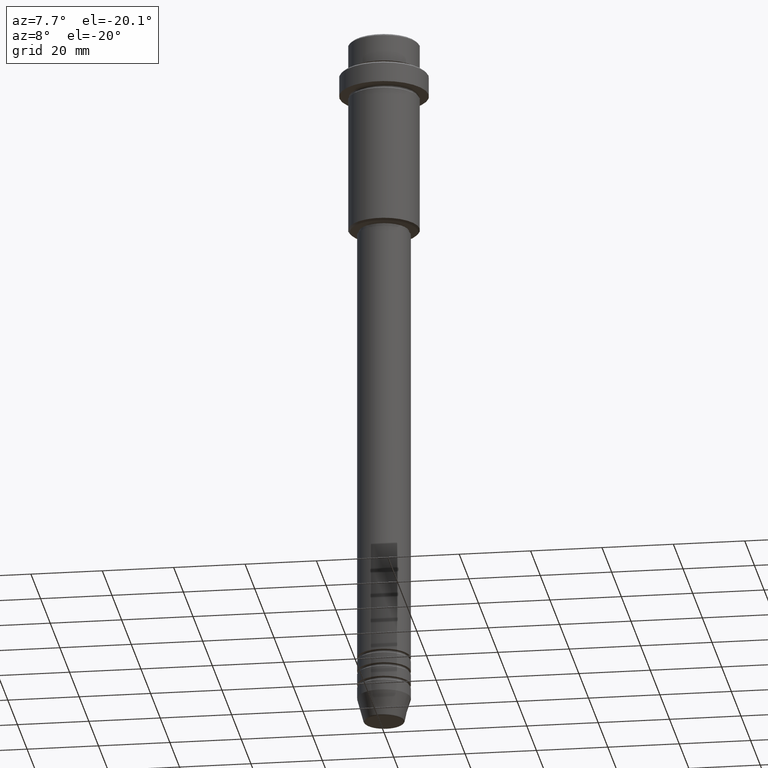
[diagram: clean part render]
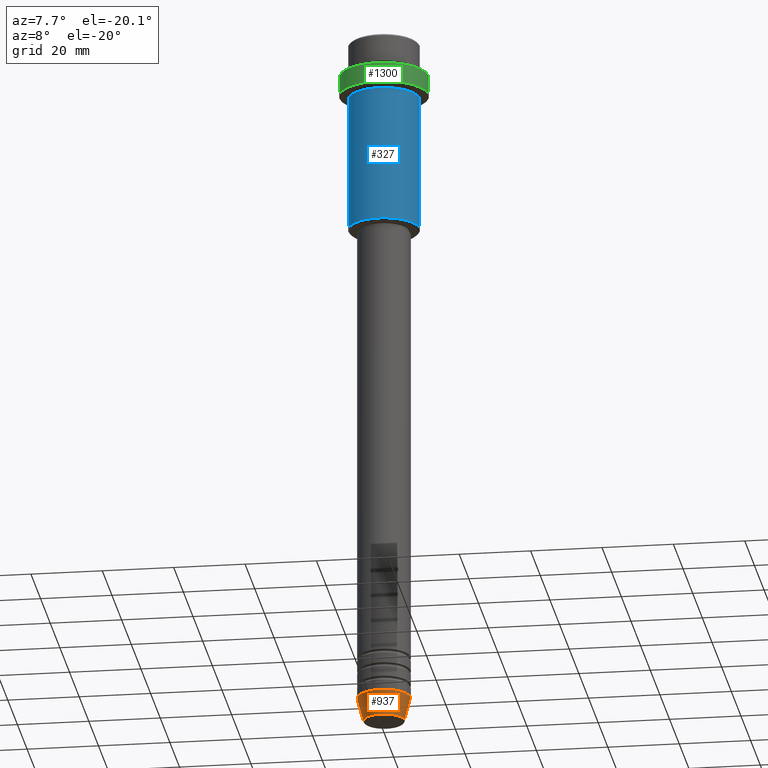
[diagram: same view with three faces highlighted in distinct colors, each labeled with its STEP entity id]
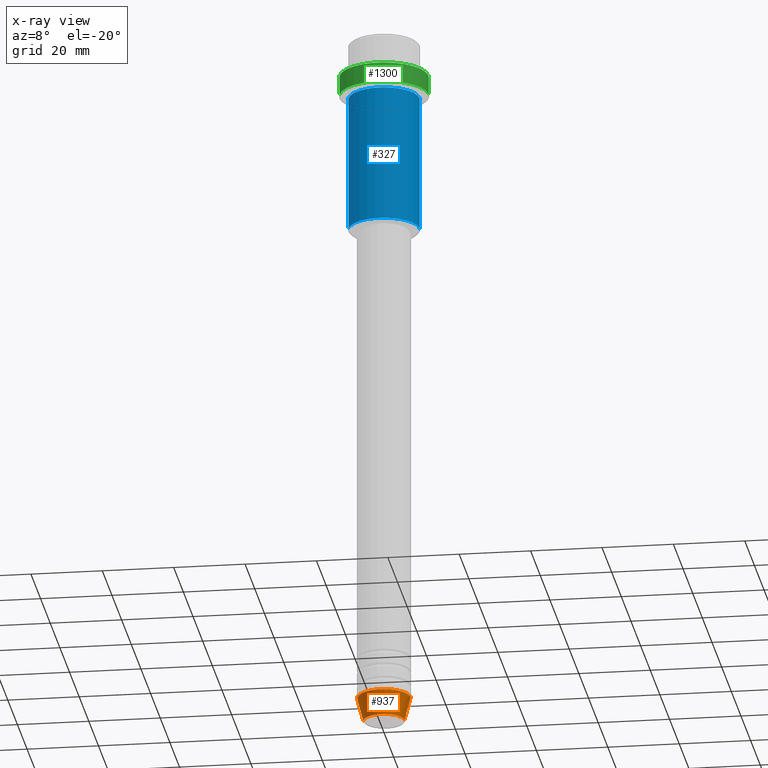
[diagram: x-ray of the same camera — body ghosted, the three highlighted faces saturated]
A machine part, auxiliary view with three faces highlighted in distinct colors.
The next image is the same camera in x-ray (body ghosted, the three faces saturated) — at least one of them is partly hidden behind the body in this view.
Their STEP definitions:

[orange] entity #937 — the highlighted conical surface has half-angle 15 deg.
#1 = EDGE_CURVE ( 'NONE', #1210, #336, #1151, .T. ) ;
#13 = VERTEX_POINT ( 'NONE', #314 ) ;
#120 = DIRECTION ( 'NONE',  ( -0.000000000000000000, -0.000000000000000000, 1.000000000000000000 ) ) ;
#152 = DIRECTION ( 'NONE',  ( -0.000000000000000000, -0.000000000000000000, 1.000000000000000000 ) ) ;
#175 = AXIS2_PLACEMENT_3D ( 'NONE', #1042, #1390, #616 ) ;
#188 = ORIENTED_EDGE ( 'NONE', *, *, #978, .F. ) ;
#202 = EDGE_CURVE ( 'NONE', #13, #1192, #611, .T. ) ;
#314 = CARTESIAN_POINT ( 'NONE',  ( -7.500000000000000000, 9.184850993605147944E-16, -193.0000000000000000 ) ) ;
#336 = VERTEX_POINT ( 'NONE', #1099 ) ;
#441 = DIRECTION ( 'NONE',  ( 1.000000000000000000, 0.000000000000000000, 0.000000000000000000 ) ) ;
#461 = CARTESIAN_POINT ( 'NONE',  ( 0.000000000000000000, 0.000000000000000000, -193.0000000000000000 ) ) ;
#586 = LINE ( 'NONE', #1014, #1184 ) ;
#611 = CIRCLE ( 'NONE', #175, 7.500000000000000000 ) ;
#616 = DIRECTION ( 'NONE',  ( 1.000000000000000000, 0.000000000000000000, 0.000000000000000000 ) ) ;
#629 = EDGE_LOOP ( 'NONE', ( #188, #924, #792, #959 ) ) ;
#649 = CARTESIAN_POINT ( 'NONE',  ( 0.000000000000000000, 0.000000000000000000, -199.6294095225512706 ) ) ;
#745 = CARTESIAN_POINT ( 'NONE',  ( 7.500000000000000000, 0.000000000000000000, -193.0000000000000000 ) ) ;
#792 = ORIENTED_EDGE ( 'NONE', *, *, #830, .T. ) ;
#830 = EDGE_CURVE ( 'NONE', #336, #1192, #1284, .T. ) ;
#841 = CONICAL_SURFACE ( 'NONE', #1182, 7.500000000000000000, 0.2617993877991500740 ) ;
#895 = DIRECTION ( 'NONE',  ( -0.2588190451025213501, 3.169619151431772337E-17, 0.9659258262890680902 ) ) ;
#904 = DIRECTION ( 'NONE',  ( 1.000000000000000000, 0.000000000000000000, 0.000000000000000000 ) ) ;
#924 = ORIENTED_EDGE ( 'NONE', *, *, #1, .T. ) ;
#937 = ADVANCED_FACE ( 'NONE', ( #1116 ), #841, .T. ) ;
#959 = ORIENTED_EDGE ( 'NONE', *, *, #202, .F. ) ;
#978 = EDGE_CURVE ( 'NONE', #1210, #13, #586, .T. ) ;
#1014 = CARTESIAN_POINT ( 'NONE',  ( -7.500000000000000000, 9.184850993605147944E-16, -193.0000000000000000 ) ) ;
#1042 = CARTESIAN_POINT ( 'NONE',  ( 0.000000000000000000, 0.000000000000000000, -193.0000000000000000 ) ) ;
#1057 = CARTESIAN_POINT ( 'NONE',  ( 7.500000000000000000, 0.000000000000000000, -193.0000000000000000 ) ) ;
#1099 = CARTESIAN_POINT ( 'NONE',  ( 5.723655072137191269, 0.000000000000000000, -199.6294095225512706 ) ) ;
#1116 = FACE_OUTER_BOUND ( 'NONE', #629, .T. ) ;
#1151 = CIRCLE ( 'NONE', #1291, 5.723655072137191269 ) ;
#1182 = AXIS2_PLACEMENT_3D ( 'NONE', #461, #152, #904 ) ;
#1184 = VECTOR ( 'NONE', #895, 1000.000000000000000 ) ;
#1192 = VERTEX_POINT ( 'NONE', #1057 ) ;
#1202 = DIRECTION ( 'NONE',  ( 0.2588190451025213501, 0.000000000000000000, 0.9659258262890680902 ) ) ;
#1210 = VERTEX_POINT ( 'NONE', #1282 ) ;
#1282 = CARTESIAN_POINT ( 'NONE',  ( -5.723655072137191269, 8.097153428560735915E-16, -199.6294095225512706 ) ) ;
#1284 = LINE ( 'NONE', #745, #1387 ) ;
#1291 = AXIS2_PLACEMENT_3D ( 'NONE', #649, #120, #441 ) ;
#1387 = VECTOR ( 'NONE', #1202, 1000.000000000000000 ) ;
#1390 = DIRECTION ( 'NONE',  ( -0.000000000000000000, -0.000000000000000000, 1.000000000000000000 ) ) ;

[blue] entity #327 — the highlighted cylindrical surface (edge-blend (fillet) strip) has radius 10 mm, axis along (-0, -0, 1).
#15 = CARTESIAN_POINT ( 'NONE',  ( -9.999999999999998224, 1.224646799147353059E-15, -54.50000000000002132 ) ) ;
#23 = DIRECTION ( 'NONE',  ( 1.000000000000000000, 0.000000000000000000, 0.000000000000000000 ) ) ;
#33 = DIRECTION ( 'NONE',  ( -0.000000000000000000, -0.000000000000000000, 1.000000000000000000 ) ) ;
#38 = CARTESIAN_POINT ( 'NONE',  ( 9.999999999999998224, 0.000000000000000000, -54.50000000000002132 ) ) ;
#50 = LINE ( 'NONE', #479, #1036 ) ;
#65 = EDGE_CURVE ( 'NONE', #68, #607, #434, .T. ) ;
#68 = VERTEX_POINT ( 'NONE', #1106 ) ;
#151 = ORIENTED_EDGE ( 'NONE', *, *, #484, .T. ) ;
#221 = CARTESIAN_POINT ( 'NONE',  ( 0.000000000000000000, 0.000000000000000000, -54.50000000000002132 ) ) ;
#255 = CIRCLE ( 'NONE', #501, 9.999999999999998224 ) ;
#327 = ADVANCED_FACE ( 'NONE', ( #524 ), #1253, .T. ) ;
#383 = VERTEX_POINT ( 'NONE', #15 ) ;
#434 = CIRCLE ( 'NONE', #976, 9.999999999999998224 ) ;
#454 = CARTESIAN_POINT ( 'NONE',  ( 0.000000000000000000, 0.000000000000000000, -16.00000000000000000 ) ) ;
#479 = CARTESIAN_POINT ( 'NONE',  ( 9.999999999999998224, 0.000000000000000000, 0.000000000000000000 ) ) ;
#484 = EDGE_CURVE ( 'NONE', #383, #628, #255, .T. ) ;
#491 = DIRECTION ( 'NONE',  ( -0.000000000000000000, -0.000000000000000000, 1.000000000000000000 ) ) ;
#501 = AXIS2_PLACEMENT_3D ( 'NONE', #221, #1417, #660 ) ;
#503 = DIRECTION ( 'NONE',  ( 1.000000000000000000, 0.000000000000000000, 0.000000000000000000 ) ) ;
#524 = FACE_OUTER_BOUND ( 'NONE', #774, .T. ) ;
#544 = EDGE_CURVE ( 'NONE', #628, #607, #50, .T. ) ;
#607 = VERTEX_POINT ( 'NONE', #1140 ) ;
#628 = VERTEX_POINT ( 'NONE', #38 ) ;
#643 = VECTOR ( 'NONE', #33, 1000.000000000000000 ) ;
#657 = ORIENTED_EDGE ( 'NONE', *, *, #544, .T. ) ;
#660 = DIRECTION ( 'NONE',  ( -1.000000000000000000, 0.000000000000000000, 0.000000000000000000 ) ) ;
#701 = CARTESIAN_POINT ( 'NONE',  ( -9.999999999999998224, 1.224646799147353059E-15, 0.000000000000000000 ) ) ;
#716 = CARTESIAN_POINT ( 'NONE',  ( 0.000000000000000000, 0.000000000000000000, 0.000000000000000000 ) ) ;
#774 = EDGE_LOOP ( 'NONE', ( #1410, #151, #657, #953 ) ) ;
#902 = EDGE_CURVE ( 'NONE', #383, #68, #921, .T. ) ;
#921 = LINE ( 'NONE', #701, #643 ) ;
#953 = ORIENTED_EDGE ( 'NONE', *, *, #65, .F. ) ;
#976 = AXIS2_PLACEMENT_3D ( 'NONE', #454, #1224, #23 ) ;
#1036 = VECTOR ( 'NONE', #491, 1000.000000000000000 ) ;
#1106 = CARTESIAN_POINT ( 'NONE',  ( -9.999999999999998224, 1.224646799147353059E-15, -16.00000000000000000 ) ) ;
#1140 = CARTESIAN_POINT ( 'NONE',  ( 9.999999999999998224, 0.000000000000000000, -16.00000000000000000 ) ) ;
#1145 = DIRECTION ( 'NONE',  ( -0.000000000000000000, -0.000000000000000000, 1.000000000000000000 ) ) ;
#1153 = AXIS2_PLACEMENT_3D ( 'NONE', #716, #1145, #503 ) ;
#1224 = DIRECTION ( 'NONE',  ( -0.000000000000000000, -0.000000000000000000, 1.000000000000000000 ) ) ;
#1253 = CYLINDRICAL_SURFACE ( 'NONE', #1153, 9.999999999999998224 ) ;
#1410 = ORIENTED_EDGE ( 'NONE', *, *, #902, .F. ) ;
#1417 = DIRECTION ( 'NONE',  ( -0.000000000000000000, -0.000000000000000000, 1.000000000000000000 ) ) ;

[green] entity #1300 — the highlighted cylindrical surface (partial cylindrical patch) has radius 12.5 mm, axis along (-0, -0, 1).
#19 = AXIS2_PLACEMENT_3D ( 'NONE', #1077, #507, #724 ) ;
#25 = CARTESIAN_POINT ( 'NONE',  ( -12.50000000000000000, 1.530808498934191521E-15, 0.000000000000000000 ) ) ;
#30 = VERTEX_POINT ( 'NONE', #190 ) ;
#54 = EDGE_CURVE ( 'NONE', #59, #1276, #863, .T. ) ;
#59 = VERTEX_POINT ( 'NONE', #1273 ) ;
#72 = FACE_OUTER_BOUND ( 'NONE', #1091, .T. ) ;
#190 = CARTESIAN_POINT ( 'NONE',  ( -12.50000000000000000, 1.530808498934191521E-15, -15.00000000000000000 ) ) ;
#193 = CYLINDRICAL_SURFACE ( 'NONE', #19, 12.50000000000000000 ) ;
#270 = DIRECTION ( 'NONE',  ( -0.000000000000000000, -0.000000000000000000, 1.000000000000000000 ) ) ;
#291 = AXIS2_PLACEMENT_3D ( 'NONE', #515, #950, #409 ) ;
#295 = AXIS2_PLACEMENT_3D ( 'NONE', #810, #270, #384 ) ;
#345 = VECTOR ( 'NONE', #486, 1000.000000000000000 ) ;
#384 = DIRECTION ( 'NONE',  ( 1.000000000000000000, 0.000000000000000000, 0.000000000000000000 ) ) ;
#398 = DIRECTION ( 'NONE',  ( -0.000000000000000000, -0.000000000000000000, 1.000000000000000000 ) ) ;
#409 = DIRECTION ( 'NONE',  ( 1.000000000000000000, 0.000000000000000000, 0.000000000000000000 ) ) ;
#486 = DIRECTION ( 'NONE',  ( -0.000000000000000000, -0.000000000000000000, 1.000000000000000000 ) ) ;
#507 = DIRECTION ( 'NONE',  ( -0.000000000000000000, -0.000000000000000000, 1.000000000000000000 ) ) ;
#515 = CARTESIAN_POINT ( 'NONE',  ( 0.000000000000000000, 0.000000000000000000, -9.500000000000005329 ) ) ;
#519 = ORIENTED_EDGE ( 'NONE', *, *, #1141, .T. ) ;
#522 = VECTOR ( 'NONE', #398, 1000.000000000000000 ) ;
#724 = DIRECTION ( 'NONE',  ( 1.000000000000000000, 0.000000000000000000, 0.000000000000000000 ) ) ;
#800 = LINE ( 'NONE', #25, #345 ) ;
#803 = CIRCLE ( 'NONE', #295, 12.50000000000000000 ) ;
#810 = CARTESIAN_POINT ( 'NONE',  ( 0.000000000000000000, 0.000000000000000000, -15.00000000000000000 ) ) ;
#856 = EDGE_CURVE ( 'NONE', #30, #1276, #800, .T. ) ;
#863 = CIRCLE ( 'NONE', #291, 12.50000000000000000 ) ;
#881 = ORIENTED_EDGE ( 'NONE', *, *, #856, .F. ) ;
#950 = DIRECTION ( 'NONE',  ( 0.000000000000000000, 0.000000000000000000, -1.000000000000000000 ) ) ;
#966 = CARTESIAN_POINT ( 'NONE',  ( -12.50000000000000000, 1.530808498934191521E-15, -9.500000000000005329 ) ) ;
#1051 = ORIENTED_EDGE ( 'NONE', *, *, #1322, .T. ) ;
#1058 = CARTESIAN_POINT ( 'NONE',  ( 12.50000000000000000, 0.000000000000000000, 0.000000000000000000 ) ) ;
#1064 = VERTEX_POINT ( 'NONE', #1243 ) ;
#1077 = CARTESIAN_POINT ( 'NONE',  ( 0.000000000000000000, 0.000000000000000000, 0.000000000000000000 ) ) ;
#1091 = EDGE_LOOP ( 'NONE', ( #881, #519, #1051, #1306 ) ) ;
#1141 = EDGE_CURVE ( 'NONE', #30, #1064, #803, .T. ) ;
#1243 = CARTESIAN_POINT ( 'NONE',  ( 12.50000000000000000, 0.000000000000000000, -15.00000000000000000 ) ) ;
#1273 = CARTESIAN_POINT ( 'NONE',  ( 12.50000000000000000, 0.000000000000000000, -9.500000000000005329 ) ) ;
#1276 = VERTEX_POINT ( 'NONE', #966 ) ;
#1300 = ADVANCED_FACE ( 'NONE', ( #72 ), #193, .T. ) ;
#1306 = ORIENTED_EDGE ( 'NONE', *, *, #54, .T. ) ;
#1322 = EDGE_CURVE ( 'NONE', #1064, #59, #1400, .T. ) ;
#1400 = LINE ( 'NONE', #1058, #522 ) ;